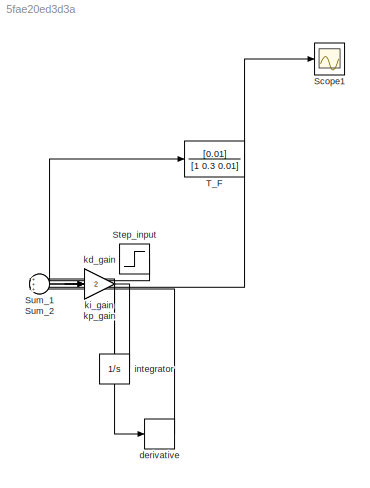
MODEL slx_5fae20ed3d3a
KIND model
CONFIG AbsTol = auto
CONFIG EnableMultiTasking = off
CONFIG FixedStep = auto
CONFIG MaxStep = auto
CONFIG MinStep = auto
CONFIG RelTol = 1e-3
CONFIG SampleTimeConstraint = Unconstrained
CONFIG SolverName = VariableStepAuto
CONFIG StartTime = 0.0
CONFIG StopTime = 100
BLOCK [Scope] Scope1
  Floating = off
  NumInputPorts = 1
  ScopeSpecificationString = Simulink.scopes.TimeScopeBlockCfg('CurrentConfiguration', extmgr.ConfigurationSet(extmgr.Configuration('Core','General UI',true),extmgr.Configuration('Core','Source UI',true),extmgr.Configuration('Sources','WiredSimulink',true),extmgr.Configuration('Visuals','Time Domain',true,'SerializedDisplays',{struct('MinYLimReal','-0.13187','MaxYLimReal','1.1868','YLabelReal','','MinYLimMag','0.00000','MaxYL...<+1319ch>
BLOCK [Step] Step_input
  SampleTime = 0
BLOCK [Sum] Sum_1
  Inputs = |+-
BLOCK [Sum] Sum_2
  Inputs = +++
BLOCK [TransferFcn] T_F
  Denominator = [1 0.3 0.01]
  Numerator = [0.01]
BLOCK [Derivative] derivative
BLOCK [Integrator] integrator
BLOCK [Gain] kd_gain
  Gain = 1e-9
BLOCK [Gain] ki_gain
  Gain = 0.1
BLOCK [Gain] kp_gain
  Gain = 2
LINE Step_input:1 -> Sum_1:1
NET Sum_1:1 -> kd_gain:1, ki_gain:1, kp_gain:1
LINE Sum_2:1 -> T_F:1
NET T_F:1 -> Scope1:1, Sum_1:2
LINE derivative:1 -> Sum_2:3
LINE integrator:1 -> Sum_2:2
LINE kd_gain:1 -> derivative:1
LINE ki_gain:1 -> integrator:1
LINE kp_gain:1 -> Sum_2:1
note: NET lines group one-source signal fan-out (src -> all destinations, sorted); 1:1 wires keep LINE
